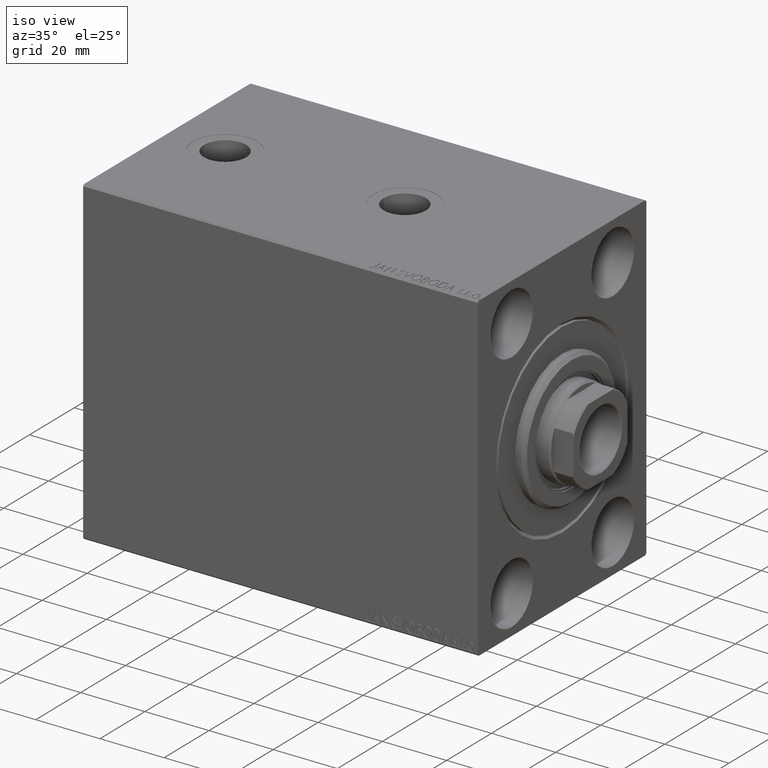
[diagram: clean part render]
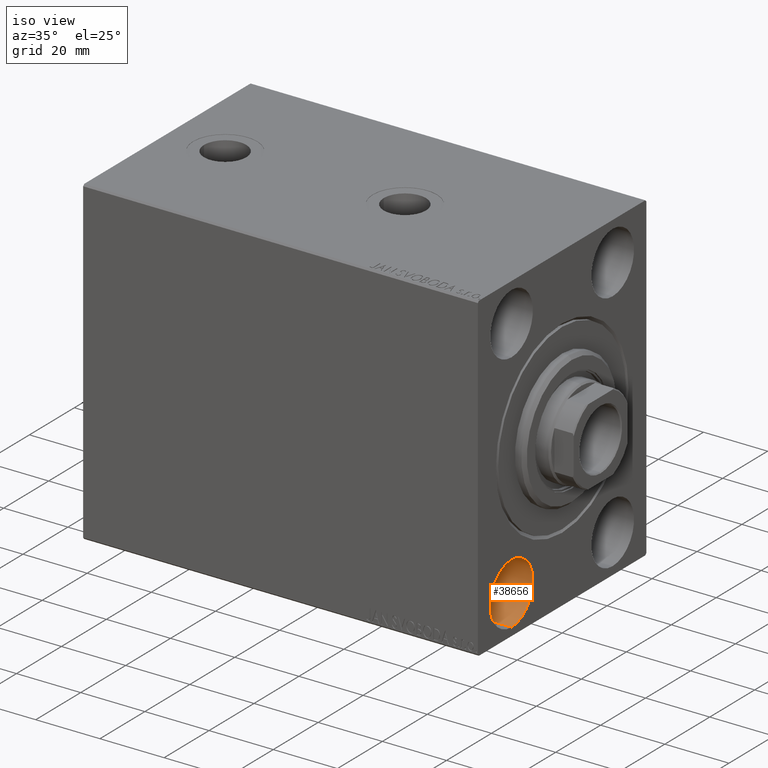
[diagram: same view with one face highlighted and labeled with its STEP entity id]
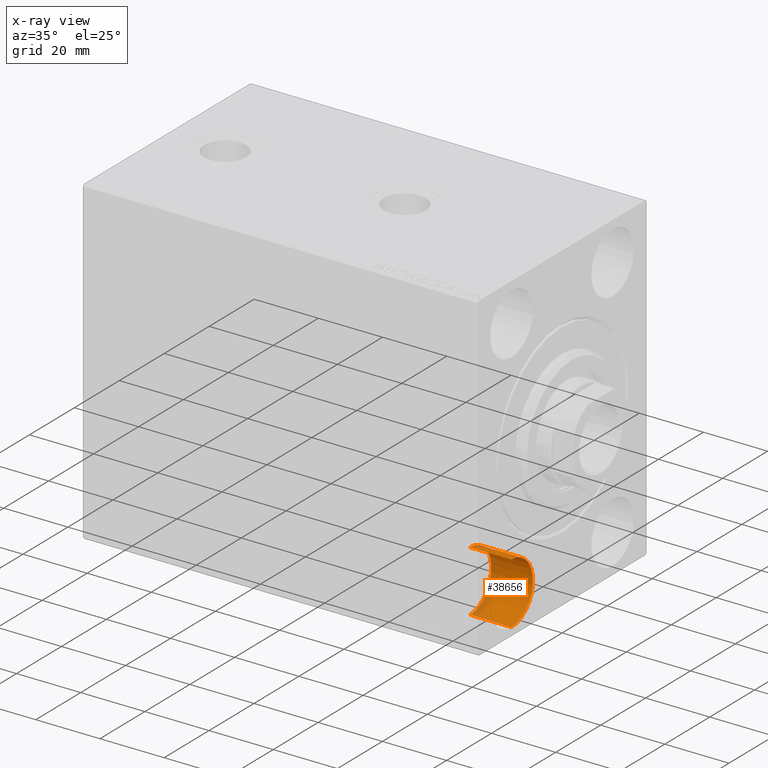
[diagram: x-ray of the same camera — body ghosted, the highlighted face saturated]
A machine part, iso view. The second image highlights one B-rep face of the part: STEP entity #38656.
The next image is the same camera in x-ray: the body ghosted, the highlighted face saturated — about 14% of this face is hidden behind the body in this view.
In plain terms, the highlighted cylindrical surface (partial cylindrical patch) has radius 9.5 mm, axis along (1, -0, 0).
Its self-contained STEP definition (entity closure, byte-faithful):
#412 = ORIENTED_EDGE ( 'NONE', *, *, #37953, .T. ) ;
#1908 = DIRECTION ( 'NONE',  ( -1.000000000000000000, -0.000000000000000000, -0.000000000000000000 ) ) ;
#5622 = LINE ( 'NONE', #33773, #45996 ) ;
#5856 = CIRCLE ( 'NONE', #9551, 9.500000000000001776 ) ;
#6164 = EDGE_CURVE ( 'NONE', #12364, #38039, #13110, .T. ) ;
#7551 = ORIENTED_EDGE ( 'NONE', *, *, #6164, .T. ) ;
#9551 = AXIS2_PLACEMENT_3D ( 'NONE', #10828, #36391, #11535 ) ;
#10828 = CARTESIAN_POINT ( 'NONE',  ( 13.00000000000000000, -22.50000000000000355, 38.00000000000000000 ) ) ;
#11535 = DIRECTION ( 'NONE',  ( 0.000000000000000000, 0.000000000000000000, 1.000000000000000000 ) ) ;
#12122 = EDGE_CURVE ( 'NONE', #21105, #24039, #5856, .T. ) ;
#12364 = VERTEX_POINT ( 'NONE', #35415 ) ;
#13083 = CYLINDRICAL_SURFACE ( 'NONE', #30584, 9.500000000000001776 ) ;
#13110 = CIRCLE ( 'NONE', #27220, 9.500000000000001776 ) ;
#13237 = ORIENTED_EDGE ( 'NONE', *, *, #29199, .F. ) ;
#16505 = CARTESIAN_POINT ( 'NONE',  ( 0.000000000000000000, -22.50000000000000355, 28.49999999999999645 ) ) ;
#16913 = ORIENTED_EDGE ( 'NONE', *, *, #12122, .F. ) ;
#20044 = CARTESIAN_POINT ( 'NONE',  ( 13.00000000000000000, -22.50000000000000355, 38.00000000000000000 ) ) ;
#21105 = VERTEX_POINT ( 'NONE', #38235 ) ;
#21132 = DIRECTION ( 'NONE',  ( 0.000000000000000000, 0.000000000000000000, 1.000000000000000000 ) ) ;
#24039 = VERTEX_POINT ( 'NONE', #32478 ) ;
#26771 = DIRECTION ( 'NONE',  ( -1.000000000000000000, 0.000000000000000000, 0.000000000000000000 ) ) ;
#27220 = AXIS2_PLACEMENT_3D ( 'NONE', #31403, #26771, #21132 ) ;
#27777 = EDGE_LOOP ( 'NONE', ( #13237, #16913, #412, #7551 ) ) ;
#29199 = EDGE_CURVE ( 'NONE', #24039, #38039, #5622, .T. ) ;
#30584 = AXIS2_PLACEMENT_3D ( 'NONE', #20044, #40519, #41205 ) ;
#31403 = CARTESIAN_POINT ( 'NONE',  ( 0.000000000000000000, -22.50000000000000355, 38.00000000000000000 ) ) ;
#32478 = CARTESIAN_POINT ( 'NONE',  ( 13.00000000000000000, -22.50000000000000355, 28.49999999999999645 ) ) ;
#33773 = CARTESIAN_POINT ( 'NONE',  ( 13.00000000000000000, -22.50000000000000355, 28.49999999999999645 ) ) ;
#34246 = FACE_OUTER_BOUND ( 'NONE', #27777, .T. ) ;
#35415 = CARTESIAN_POINT ( 'NONE',  ( 0.000000000000000000, -22.50000000000000355, 47.50000000000000000 ) ) ;
#36391 = DIRECTION ( 'NONE',  ( -1.000000000000000000, 0.000000000000000000, 0.000000000000000000 ) ) ;
#37953 = EDGE_CURVE ( 'NONE', #21105, #12364, #40921, .T. ) ;
#38039 = VERTEX_POINT ( 'NONE', #16505 ) ;
#38235 = CARTESIAN_POINT ( 'NONE',  ( 13.00000000000000000, -22.50000000000000355, 47.50000000000000000 ) ) ;
#38656 = ADVANCED_FACE ( 'NONE', ( #34246 ), #13083, .F. ) ;
#40459 = DIRECTION ( 'NONE',  ( -1.000000000000000000, -0.000000000000000000, -0.000000000000000000 ) ) ;
#40519 = DIRECTION ( 'NONE',  ( -1.000000000000000000, -0.000000000000000000, -0.000000000000000000 ) ) ;
#40921 = LINE ( 'NONE', #44401, #45398 ) ;
#41205 = DIRECTION ( 'NONE',  ( 0.000000000000000000, 0.000000000000000000, 1.000000000000000000 ) ) ;
#44401 = CARTESIAN_POINT ( 'NONE',  ( 13.00000000000000000, -22.50000000000000355, 47.50000000000000000 ) ) ;
#45398 = VECTOR ( 'NONE', #40459, 1000.000000000000000 ) ;
#45996 = VECTOR ( 'NONE', #1908, 1000.000000000000000 ) ;